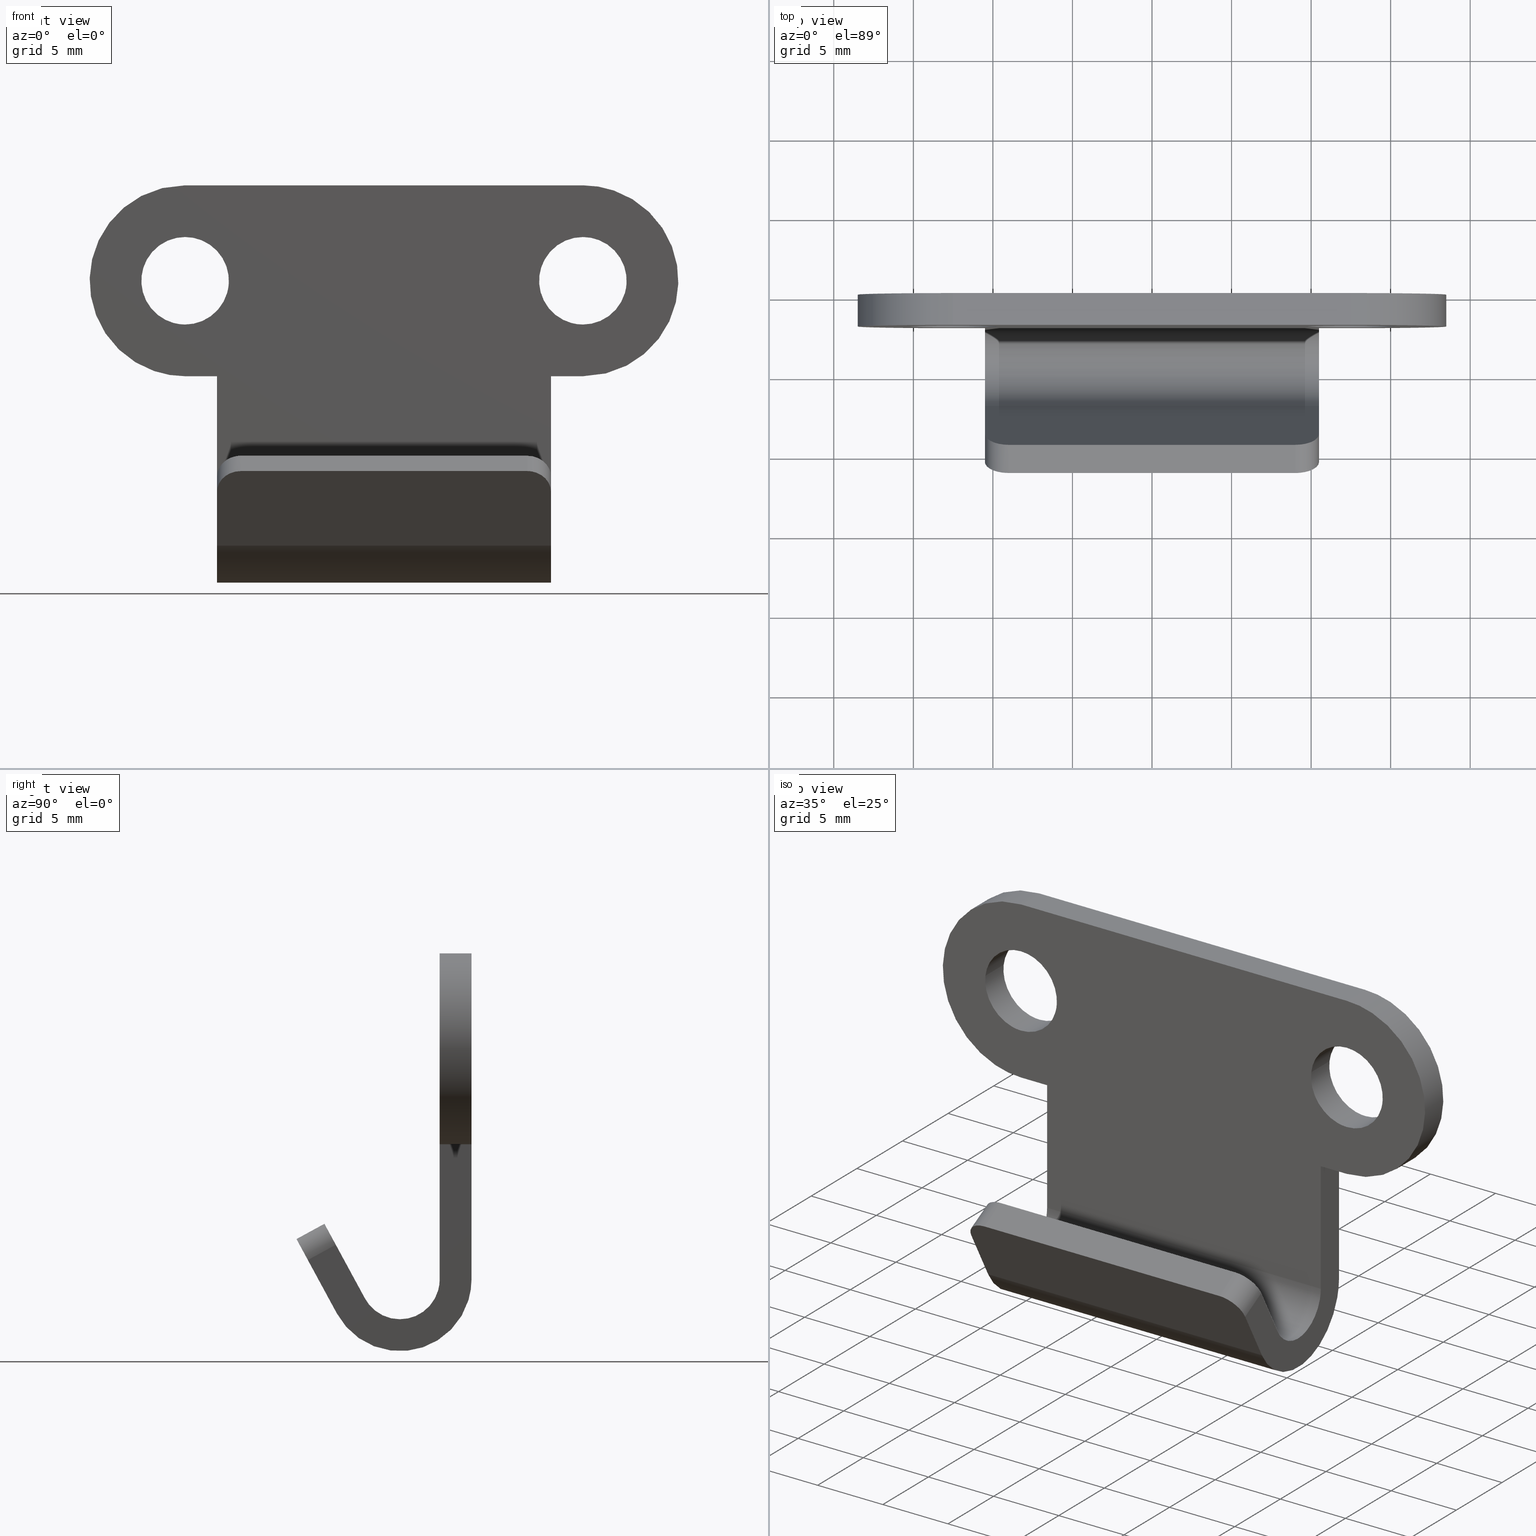
[diagram: canonical four-view strip — front | top / right | iso, engineering-drawing reading convention]
A machine part, canonical four-view strip (front | top / right | iso — engineering-drawing reading convention). The complete STEP part file that produces these views, byte-faithful:
ISO-10303-21;
HEADER;
/****************************************************************
 * Generated by software with PDE/Lib inside                    *
 * PDElib Version 4.4.1-0003, patched  Thursday August 19 11:58 *
 * International Technegroup Inc. (www.iti-oh.com)              *
 ****************************************************************/
FILE_DESCRIPTION((''),'2;1');
FILE_NAME('','2005-07-15T14:40:46',(''),(''),'','CADfix','');
FILE_SCHEMA(('AUTOMOTIVE_DESIGN'));
ENDSEC;
DATA;
#5=APPLICATION_CONTEXT('automotive design');
#6=APPLICATION_PROTOCOL_DEFINITION('Draft International Standard','automotive_design',1998,#5);
#7=PRODUCT_CONTEXT('None',#5,'mechanical');
#8=PRODUCT('keeper','','None',(#7));
#9=PRODUCT_RELATED_PRODUCT_CATEGORY('part','description',(#8));
#10=PRODUCT_DEFINITION_FORMATION('None','None',#8);
#11=PRODUCT_DEFINITION_CONTEXT('part definition',#5,'design');
#12=PRODUCT_DEFINITION('None','None',#10,#11);
#18=(NAMED_UNIT(*)PLANE_ANGLE_UNIT()SI_UNIT($,.RADIAN.));
#19=DIMENSIONAL_EXPONENTS(0.0,0.0,0.0,0.0,0.0,0.0,0.0);
#20=PLANE_ANGLE_MEASURE_WITH_UNIT(PLANE_ANGLE_MEASURE(0.017453292500000),#18);
#24=(CONVERSION_BASED_UNIT('DEGREE',#20)NAMED_UNIT(#19)PLANE_ANGLE_UNIT());
#28=(NAMED_UNIT(*)SI_UNIT($,.STERADIAN.)SOLID_ANGLE_UNIT());
#32=(LENGTH_UNIT()NAMED_UNIT(*)SI_UNIT(.MILLI.,.METRE.));
#34=UNCERTAINTY_MEASURE_WITH_UNIT(LENGTH_MEASURE(0.001000000000000),#32,'DISTANCE_ACCURACY_VALUE','');
#36=(GEOMETRIC_REPRESENTATION_CONTEXT(3)GLOBAL_UNCERTAINTY_ASSIGNED_CONTEXT((#34))GLOBAL_UNIT_ASSIGNED_CONTEXT((#24,#28,#32))REPRESENTATION_CONTEXT('None','None'));
#37=AXIS2_PLACEMENT_3D('',#38,#39,#40);
#38=CARTESIAN_POINT('',(0.0,0.0,0.0));
#39=DIRECTION('',(0.0,0.0,1.0));
#40=DIRECTION('',(1.0,0.0,0.0));
#41=ADVANCED_BREP_SHAPE_REPRESENTATION('',(#37,#1061),#36);
#42=PRODUCT_DEFINITION_SHAPE('','',#12);
#43=SHAPE_DEFINITION_REPRESENTATION(#42,#41);
#44=CARTESIAN_POINT('',(-15.230776197500090,0.050000000000000,-5.675405854693914));
#45=CARTESIAN_POINT('',(-15.240065942483664,0.050000000000000,-5.753559496245561));
#46=CARTESIAN_POINT('',(-15.244870695660129,0.050000000000000,-5.832116516279143));
#47=CARTESIAN_POINT('',(-15.412754179380990,0.050000000000000,-8.576987211939276));
#48=CARTESIAN_POINT('',(-12.667883483720860,0.050000000000000,-8.744870695660133));
#49=CARTESIAN_POINT('',(-9.923012788060724,0.050000000000000,-8.912754179380990));
#50=CARTESIAN_POINT('',(-9.755129304339867,0.050000000000000,-6.167883483720857));
#51=CARTESIAN_POINT('',(-15.230776197500090,-2.051250000000001,-5.675405854693914));
#52=CARTESIAN_POINT('',(-15.240065942483664,-2.051250000000000,-5.753559496245561));
#53=CARTESIAN_POINT('',(-15.244870695660129,-2.051250000000000,-5.832116516279143));
#54=CARTESIAN_POINT('',(-15.412754179380990,-2.051250000000001,-8.576987211939276));
#55=CARTESIAN_POINT('',(-12.667883483720860,-2.051250000000000,-8.744870695660133));
#56=CARTESIAN_POINT('',(-9.923012788060724,-2.051250000000001,-8.912754179380990));
#57=CARTESIAN_POINT('',(-9.755129304339867,-2.051250000000000,-6.167883483720857));
#65=(BOUNDED_SURFACE()B_SPLINE_SURFACE(2,1,((#44,#51),(#45,#52),(#46,#53),(#47,#54),(#48,#55),(#49,#56),(#50,#57)),.UNSPECIFIED.,.F.,.F.,.U.)B_SPLINE_SURFACE_WITH_KNOTS((3,2,2,3),(2,2),(0.0,0.182253967444162,4.738603153548206,9.294952339652248),(0.0,2.101250000000000),.UNSPECIFIED.)GEOMETRIC_REPRESENTATION_ITEM()RATIONAL_B_SPLINE_SURFACE(((0.977505800795127,0.977505800795127),(0.988284271247462,0.988284271247462),(1.0,1.0),(0.707106781186548,0.707106781186548),(1.0,1.0),(0.707106781186548,0.707106781186548),(1.0,1.0)))REPRESENTATION_ITEM('')SURFACE());
#66=CARTESIAN_POINT('',(-15.230776197496031,7.098571E-017,-5.675405854659825));
#67=VERTEX_POINT('',#66);
#68=CARTESIAN_POINT('',(-12.500000000000000,0.0,-8.750000000000000));
#69=VERTEX_POINT('',#68);
#70=CARTESIAN_POINT('',(-15.230776197496034,7.098571E-017,-5.675405854659824));
#71=CARTESIAN_POINT('',(-15.250000000000002,0.0,-5.837133670922799));
#72=CARTESIAN_POINT('',(-15.250000000000000,0.0,-6.0));
#73=CARTESIAN_POINT('',(-15.249999999999998,0.0,-8.750000000000000));
#74=CARTESIAN_POINT('',(-12.500000000000000,0.0,-8.750000000000000));
#82=(BOUNDED_CURVE()B_SPLINE_CURVE(2,(#70,#71,#72,#73,#74),.UNSPECIFIED.,.F.,.U.)B_SPLINE_CURVE_WITH_KNOTS((3,2,3),(0.229562473511425,0.250000000000000,0.500000000000000),.UNSPECIFIED.)CURVE()GEOMETRIC_REPRESENTATION_ITEM()RATIONAL_B_SPLINE_CURVE((0.956026754179616,0.976055948328704,1.0,0.707106781186548,1.0))REPRESENTATION_ITEM(''));
#83=EDGE_CURVE('',#67,#69,#82,.T.);
#84=ORIENTED_EDGE('',*,*,#83,.F.);
#85=CARTESIAN_POINT('',(-15.230776197496031,-2.0,-5.675405854659825));
#86=VERTEX_POINT('',#85);
#87=CARTESIAN_POINT('',(-15.230776197496031,7.098571E-017,-5.675405854659825));
#88=CARTESIAN_POINT('',(-15.230776197496031,-2.0,-5.675405854659825));
#89=QUASI_UNIFORM_CURVE('',1,(#87,#88),.UNSPECIFIED.,.F.,.U.);
#90=EDGE_CURVE('',#67,#86,#89,.T.);
#91=ORIENTED_EDGE('',*,*,#90,.T.);
#92=CARTESIAN_POINT('',(-12.500000000000000,-2.0,-8.750000000000000));
#93=VERTEX_POINT('',#92);
#94=CARTESIAN_POINT('',(-15.230776197496034,-2.000000000000000,-5.675405854659824));
#95=CARTESIAN_POINT('',(-15.250000000000002,-2.000000000000000,-5.837133670922799));
#96=CARTESIAN_POINT('',(-15.250000000000000,-2.0,-6.0));
#97=CARTESIAN_POINT('',(-15.249999999999998,-2.000000000000000,-8.750000000000000));
#98=CARTESIAN_POINT('',(-12.500000000000000,-2.0,-8.750000000000000));
#106=(BOUNDED_CURVE()B_SPLINE_CURVE(2,(#94,#95,#96,#97,#98),.UNSPECIFIED.,.F.,.U.)B_SPLINE_CURVE_WITH_KNOTS((3,2,3),(0.229562473511425,0.250000000000000,0.500000000000000),.UNSPECIFIED.)CURVE()GEOMETRIC_REPRESENTATION_ITEM()RATIONAL_B_SPLINE_CURVE((0.956026754179616,0.976055948328704,1.0,0.707106781186548,1.0))REPRESENTATION_ITEM(''));
#107=EDGE_CURVE('',#86,#93,#106,.T.);
#108=ORIENTED_EDGE('',*,*,#107,.T.);
#109=CARTESIAN_POINT('',(-9.755129304343132,-2.0,-6.167883483774260));
#110=VERTEX_POINT('',#109);
#111=CARTESIAN_POINT('',(-12.500000000000000,-2.0,-8.750000000000000));
#112=CARTESIAN_POINT('',(-9.913058316110183,-1.999999999999999,-8.750000000000000));
#113=CARTESIAN_POINT('',(-9.755129304343132,-2.000000000000000,-6.167883483774260));
#121=(BOUNDED_CURVE()B_SPLINE_CURVE(2,(#111,#112,#113),.UNSPECIFIED.,.F.,.U.)B_SPLINE_CURVE_WITH_KNOTS((3,3),(0.500000000000000,0.739332962235255),.UNSPECIFIED.)CURVE()GEOMETRIC_REPRESENTATION_ITEM()RATIONAL_B_SPLINE_CURVE((1.0,0.719603993291031,0.976072041658813))REPRESENTATION_ITEM(''));
#122=EDGE_CURVE('',#93,#110,#121,.T.);
#123=ORIENTED_EDGE('',*,*,#122,.T.);
#124=CARTESIAN_POINT('',(-9.755129304343134,6.938894E-017,-6.167883483774261));
#125=VERTEX_POINT('',#124);
#126=CARTESIAN_POINT('',(-9.755129304343134,6.938894E-017,-6.167883483774261));
#127=CARTESIAN_POINT('',(-9.755129304343132,-2.0,-6.167883483774260));
#128=QUASI_UNIFORM_CURVE('',1,(#126,#127),.UNSPECIFIED.,.F.,.U.);
#129=EDGE_CURVE('',#125,#110,#128,.T.);
#130=ORIENTED_EDGE('',*,*,#129,.F.);
#131=CARTESIAN_POINT('',(-12.500000000000000,0.0,-8.750000000000000));
#132=CARTESIAN_POINT('',(-9.913058316110183,0.0,-8.750000000000000));
#133=CARTESIAN_POINT('',(-9.755129304343134,6.938894E-017,-6.167883483774262));
#141=(BOUNDED_CURVE()B_SPLINE_CURVE(2,(#131,#132,#133),.UNSPECIFIED.,.F.,.U.)B_SPLINE_CURVE_WITH_KNOTS((3,3),(0.500000000000000,0.739332962235255),.UNSPECIFIED.)CURVE()GEOMETRIC_REPRESENTATION_ITEM()RATIONAL_B_SPLINE_CURVE((1.0,0.719603993291031,0.976072041658813))REPRESENTATION_ITEM(''));
#142=EDGE_CURVE('',#69,#125,#141,.T.);
#143=ORIENTED_EDGE('',*,*,#142,.F.);
#144=EDGE_LOOP('',(#84,#91,#108,#123,#130,#143));
#145=FACE_OUTER_BOUND('',#144,.T.);
#146=ADVANCED_FACE('',(#145),#65,.F.);
#147=CARTESIAN_POINT('',(-9.755129304339867,0.050000000000000,-6.167883483720857));
#148=CARTESIAN_POINT('',(-9.587245820619010,0.050000000000000,-3.423012788060723));
#149=CARTESIAN_POINT('',(-12.332116516279140,0.050000000000000,-3.255129304339866));
#150=CARTESIAN_POINT('',(-14.924244599808622,0.050000000000000,-3.096587958985549));
#151=CARTESIAN_POINT('',(-15.230776197500090,0.050000000000000,-5.675405854693914));
#152=CARTESIAN_POINT('',(-9.755129304339867,-2.051250000000000,-6.167883483720857));
#153=CARTESIAN_POINT('',(-9.587245820619010,-2.051250000000001,-3.423012788060723));
#154=CARTESIAN_POINT('',(-12.332116516279140,-2.051250000000000,-3.255129304339866));
#155=CARTESIAN_POINT('',(-14.924244599808622,-2.051250000000001,-3.096587958985549));
#156=CARTESIAN_POINT('',(-15.230776197500090,-2.051250000000001,-5.675405854693914));
#164=(BOUNDED_SURFACE()B_SPLINE_SURFACE(2,1,((#147,#152),(#148,#153),(#149,#154),(#150,#155),(#151,#156)),.UNSPECIFIED.,.F.,.F.,.U.)B_SPLINE_SURFACE_WITH_KNOTS((3,2,3),(2,2),(0.0,4.556349186104045,8.930444404763927),(0.0,2.101250000000000),.UNSPECIFIED.)GEOMETRIC_REPRESENTATION_ITEM()RATIONAL_B_SPLINE_SURFACE(((1.0,1.0),(0.707106781186548,0.707106781186548),(1.0,1.0),(0.718822509939086,0.718822509939086),(0.977505800795127,0.977505800795127)))REPRESENTATION_ITEM('')SURFACE());
#165=CARTESIAN_POINT('',(-12.500000000000000,0.0,-3.250000000000000));
#166=VERTEX_POINT('',#165);
#167=CARTESIAN_POINT('',(-12.500000000000000,0.0,-3.250000000000000));
#168=CARTESIAN_POINT('',(-14.942479946304845,0.0,-3.250000000000001));
#169=CARTESIAN_POINT('',(-15.230776197496033,7.098571E-017,-5.675405854659825));
#177=(BOUNDED_CURVE()B_SPLINE_CURVE(2,(#167,#168,#169),.UNSPECIFIED.,.F.,.U.)B_SPLINE_CURVE_WITH_KNOTS((3,3),(0.0,0.229562473511425),.UNSPECIFIED.)CURVE()GEOMETRIC_REPRESENTATION_ITEM()RATIONAL_B_SPLINE_CURVE((1.0,0.731050832857843,0.956026754179616))REPRESENTATION_ITEM(''));
#178=EDGE_CURVE('',#166,#67,#177,.T.);
#179=ORIENTED_EDGE('',*,*,#178,.F.);
#180=CARTESIAN_POINT('',(-9.755129304343134,6.938894E-017,-6.167883483774261));
#181=CARTESIAN_POINT('',(-9.750000000000004,0.0,-6.084020099124674));
#182=CARTESIAN_POINT('',(-9.750000000000002,0.0,-6.0));
#183=CARTESIAN_POINT('',(-9.750000000000002,0.0,-3.250000000000000));
#184=CARTESIAN_POINT('',(-12.500000000000000,0.0,-3.250000000000000));
#192=(BOUNDED_CURVE()B_SPLINE_CURVE(2,(#180,#181,#182,#183,#184),.UNSPECIFIED.,.F.,.U.)B_SPLINE_CURVE_WITH_KNOTS((3,2,3),(0.739332962235254,0.750000000000000,1.0),.UNSPECIFIED.)CURVE()GEOMETRIC_REPRESENTATION_ITEM()RATIONAL_B_SPLINE_CURVE((0.976072041658812,0.987502787895516,1.0,0.707106781186548,1.0))REPRESENTATION_ITEM(''));
#193=EDGE_CURVE('',#125,#166,#192,.T.);
#194=ORIENTED_EDGE('',*,*,#193,.F.);
#195=ORIENTED_EDGE('',*,*,#129,.T.);
#196=CARTESIAN_POINT('',(-12.500000000000000,-2.0,-3.250000000000000));
#197=VERTEX_POINT('',#196);
#198=CARTESIAN_POINT('',(-9.755129304343132,-2.000000000000000,-6.167883483774260));
#199=CARTESIAN_POINT('',(-9.750000000000002,-2.000000000000000,-6.084020099124673));
#200=CARTESIAN_POINT('',(-9.750000000000002,-2.0,-6.0));
#201=CARTESIAN_POINT('',(-9.750000000000002,-2.000000000000000,-3.250000000000000));
#202=CARTESIAN_POINT('',(-12.500000000000000,-2.0,-3.250000000000000));
#210=(BOUNDED_CURVE()B_SPLINE_CURVE(2,(#198,#199,#200,#201,#202),.UNSPECIFIED.,.F.,.U.)B_SPLINE_CURVE_WITH_KNOTS((3,2,3),(0.739332962235254,0.750000000000000,1.0),.UNSPECIFIED.)CURVE()GEOMETRIC_REPRESENTATION_ITEM()RATIONAL_B_SPLINE_CURVE((0.976072041658812,0.987502787895516,1.0,0.707106781186548,1.0))REPRESENTATION_ITEM(''));
#211=EDGE_CURVE('',#110,#197,#210,.T.);
#212=ORIENTED_EDGE('',*,*,#211,.T.);
#213=CARTESIAN_POINT('',(-12.500000000000000,-2.0,-3.250000000000000));
#214=CARTESIAN_POINT('',(-14.942479946304845,-2.0,-3.250000000000001));
#215=CARTESIAN_POINT('',(-15.230776197496033,-2.000000000000000,-5.675405854659825));
#223=(BOUNDED_CURVE()B_SPLINE_CURVE(2,(#213,#214,#215),.UNSPECIFIED.,.F.,.U.)B_SPLINE_CURVE_WITH_KNOTS((3,3),(0.0,0.229562473511425),.UNSPECIFIED.)CURVE()GEOMETRIC_REPRESENTATION_ITEM()RATIONAL_B_SPLINE_CURVE((1.0,0.731050832857843,0.956026754179616))REPRESENTATION_ITEM(''));
#224=EDGE_CURVE('',#197,#86,#223,.T.);
#225=ORIENTED_EDGE('',*,*,#224,.T.);
#226=ORIENTED_EDGE('',*,*,#90,.F.);
#227=EDGE_LOOP('',(#179,#194,#195,#212,#225,#226));
#228=FACE_OUTER_BOUND('',#227,.T.);
#229=ADVANCED_FACE('',(#228),#164,.F.);
#230=CARTESIAN_POINT('',(9.769223802499919,0.050000000000000,-5.675405854693914));
#231=CARTESIAN_POINT('',(9.759934057516336,0.050000000000000,-5.753559496245561));
#232=CARTESIAN_POINT('',(9.755129304339867,0.050000000000000,-5.832116516279143));
#233=CARTESIAN_POINT('',(9.587245820619010,0.050000000000000,-8.576987211939276));
#234=CARTESIAN_POINT('',(12.332116516279140,0.050000000000000,-8.744870695660133));
#235=CARTESIAN_POINT('',(15.076987211939274,0.050000000000000,-8.912754179380990));
#236=CARTESIAN_POINT('',(15.244870695660129,0.050000000000000,-6.167883483720857));
#237=CARTESIAN_POINT('',(9.769223802499919,-2.051250000000001,-5.675405854693914));
#238=CARTESIAN_POINT('',(9.759934057516336,-2.051250000000000,-5.753559496245561));
#239=CARTESIAN_POINT('',(9.755129304339867,-2.051250000000000,-5.832116516279143));
#240=CARTESIAN_POINT('',(9.587245820619010,-2.051250000000001,-8.576987211939276));
#241=CARTESIAN_POINT('',(12.332116516279140,-2.051250000000000,-8.744870695660133));
#242=CARTESIAN_POINT('',(15.076987211939274,-2.051250000000001,-8.912754179380990));
#243=CARTESIAN_POINT('',(15.244870695660129,-2.051250000000000,-6.167883483720857));
#251=(BOUNDED_SURFACE()B_SPLINE_SURFACE(2,1,((#230,#237),(#231,#238),(#232,#239),(#233,#240),(#234,#241),(#235,#242),(#236,#243)),.UNSPECIFIED.,.F.,.F.,.U.)B_SPLINE_SURFACE_WITH_KNOTS((3,2,2,3),(2,2),(0.0,0.182253967444162,4.738603153548206,9.294952339652248),(0.0,2.101250000000000),.UNSPECIFIED.)GEOMETRIC_REPRESENTATION_ITEM()RATIONAL_B_SPLINE_SURFACE(((0.977505800795127,0.977505800795127),(0.988284271247462,0.988284271247462),(1.0,1.0),(0.707106781186548,0.707106781186548),(1.0,1.0),(0.707106781186548,0.707106781186548),(1.0,1.0)))REPRESENTATION_ITEM('')SURFACE());
#252=CARTESIAN_POINT('',(9.769223802503969,7.098571E-017,-5.675405854659825));
#253=VERTEX_POINT('',#252);
#254=CARTESIAN_POINT('',(12.500000000000000,0.0,-8.750000000000000));
#255=VERTEX_POINT('',#254);
#256=CARTESIAN_POINT('',(9.769223802503969,7.098571E-017,-5.675405854659825));
#257=CARTESIAN_POINT('',(9.750000000000002,0.0,-5.837133670922799));
#258=CARTESIAN_POINT('',(9.750000000000002,0.0,-6.0));
#259=CARTESIAN_POINT('',(9.750000000000002,0.0,-8.750000000000000));
#260=CARTESIAN_POINT('',(12.500000000000000,0.0,-8.750000000000000));
#268=(BOUNDED_CURVE()B_SPLINE_CURVE(2,(#256,#257,#258,#259,#260),.UNSPECIFIED.,.F.,.U.)B_SPLINE_CURVE_WITH_KNOTS((3,2,3),(0.229562473511425,0.250000000000000,0.500000000000000),.UNSPECIFIED.)CURVE()GEOMETRIC_REPRESENTATION_ITEM()RATIONAL_B_SPLINE_CURVE((0.956026754179616,0.976055948328704,1.0,0.707106781186548,1.0))REPRESENTATION_ITEM(''));
#269=EDGE_CURVE('',#253,#255,#268,.T.);
#270=ORIENTED_EDGE('',*,*,#269,.F.);
#271=CARTESIAN_POINT('',(9.769223802503971,-2.0,-5.675405854659825));
#272=VERTEX_POINT('',#271);
#273=CARTESIAN_POINT('',(9.769223802503969,7.098571E-017,-5.675405854659825));
#274=CARTESIAN_POINT('',(9.769223802503971,-2.0,-5.675405854659825));
#275=QUASI_UNIFORM_CURVE('',1,(#273,#274),.UNSPECIFIED.,.F.,.U.);
#276=EDGE_CURVE('',#253,#272,#275,.T.);
#277=ORIENTED_EDGE('',*,*,#276,.T.);
#278=CARTESIAN_POINT('',(12.500000000000000,-2.0,-8.750000000000000));
#279=VERTEX_POINT('',#278);
#280=CARTESIAN_POINT('',(9.769223802503971,-2.000000000000000,-5.675405854659824));
#281=CARTESIAN_POINT('',(9.750000000000002,-2.000000000000000,-5.837133670922799));
#282=CARTESIAN_POINT('',(9.750000000000002,-2.0,-6.0));
#283=CARTESIAN_POINT('',(9.750000000000002,-2.000000000000000,-8.750000000000000));
#284=CARTESIAN_POINT('',(12.500000000000000,-2.0,-8.750000000000000));
#292=(BOUNDED_CURVE()B_SPLINE_CURVE(2,(#280,#281,#282,#283,#284),.UNSPECIFIED.,.F.,.U.)B_SPLINE_CURVE_WITH_KNOTS((3,2,3),(0.229562473511425,0.250000000000000,0.500000000000000),.UNSPECIFIED.)CURVE()GEOMETRIC_REPRESENTATION_ITEM()RATIONAL_B_SPLINE_CURVE((0.956026754179616,0.976055948328704,1.0,0.707106781186548,1.0))REPRESENTATION_ITEM(''));
#293=EDGE_CURVE('',#272,#279,#292,.T.);
#294=ORIENTED_EDGE('',*,*,#293,.T.);
#295=CARTESIAN_POINT('',(15.244870695656870,-2.0,-6.167883483774260));
#296=VERTEX_POINT('',#295);
#297=CARTESIAN_POINT('',(12.500000000000000,-2.0,-8.750000000000000));
#298=CARTESIAN_POINT('',(15.086941683889821,-1.999999999999999,-8.750000000000000));
#299=CARTESIAN_POINT('',(15.244870695656868,-2.000000000000000,-6.167883483774260));
#307=(BOUNDED_CURVE()B_SPLINE_CURVE(2,(#297,#298,#299),.UNSPECIFIED.,.F.,.U.)B_SPLINE_CURVE_WITH_KNOTS((3,3),(0.500000000000000,0.739332962235255),.UNSPECIFIED.)CURVE()GEOMETRIC_REPRESENTATION_ITEM()RATIONAL_B_SPLINE_CURVE((1.0,0.719603993291031,0.976072041658813))REPRESENTATION_ITEM(''));
#308=EDGE_CURVE('',#279,#296,#307,.T.);
#309=ORIENTED_EDGE('',*,*,#308,.T.);
#310=CARTESIAN_POINT('',(15.244870695656870,6.938894E-017,-6.167883483774260));
#311=VERTEX_POINT('',#310);
#312=CARTESIAN_POINT('',(15.244870695656870,6.938894E-017,-6.167883483774260));
#313=CARTESIAN_POINT('',(15.244870695656870,-2.0,-6.167883483774260));
#314=QUASI_UNIFORM_CURVE('',1,(#312,#313),.UNSPECIFIED.,.F.,.U.);
#315=EDGE_CURVE('',#311,#296,#314,.T.);
#316=ORIENTED_EDGE('',*,*,#315,.F.);
#317=CARTESIAN_POINT('',(12.500000000000000,0.0,-8.750000000000000));
#318=CARTESIAN_POINT('',(15.086941683889821,0.0,-8.750000000000000));
#319=CARTESIAN_POINT('',(15.244870695656868,6.938894E-017,-6.167883483774260));
#327=(BOUNDED_CURVE()B_SPLINE_CURVE(2,(#317,#318,#319),.UNSPECIFIED.,.F.,.U.)B_SPLINE_CURVE_WITH_KNOTS((3,3),(0.500000000000000,0.739332962235255),.UNSPECIFIED.)CURVE()GEOMETRIC_REPRESENTATION_ITEM()RATIONAL_B_SPLINE_CURVE((1.0,0.719603993291031,0.976072041658813))REPRESENTATION_ITEM(''));
#328=EDGE_CURVE('',#255,#311,#327,.T.);
#329=ORIENTED_EDGE('',*,*,#328,.F.);
#330=EDGE_LOOP('',(#270,#277,#294,#309,#316,#329));
#331=FACE_OUTER_BOUND('',#330,.T.);
#332=ADVANCED_FACE('',(#331),#251,.F.);
#333=CARTESIAN_POINT('',(15.244870695660129,0.050000000000000,-6.167883483720857));
#334=CARTESIAN_POINT('',(15.412754179380990,0.050000000000000,-3.423012788060723));
#335=CARTESIAN_POINT('',(12.667883483720860,0.050000000000000,-3.255129304339866));
#336=CARTESIAN_POINT('',(10.075755400191376,0.050000000000000,-3.096587958985549));
#337=CARTESIAN_POINT('',(9.769223802499919,0.050000000000000,-5.675405854693914));
#338=CARTESIAN_POINT('',(15.244870695660129,-2.051250000000000,-6.167883483720857));
#339=CARTESIAN_POINT('',(15.412754179380990,-2.051250000000001,-3.423012788060723));
#340=CARTESIAN_POINT('',(12.667883483720860,-2.051250000000000,-3.255129304339866));
#341=CARTESIAN_POINT('',(10.075755400191376,-2.051250000000001,-3.096587958985549));
#342=CARTESIAN_POINT('',(9.769223802499919,-2.051250000000001,-5.675405854693914));
#350=(BOUNDED_SURFACE()B_SPLINE_SURFACE(2,1,((#333,#338),(#334,#339),(#335,#340),(#336,#341),(#337,#342)),.UNSPECIFIED.,.F.,.F.,.U.)B_SPLINE_SURFACE_WITH_KNOTS((3,2,3),(2,2),(0.0,4.556349186104045,8.930444404763927),(0.0,2.101250000000000),.UNSPECIFIED.)GEOMETRIC_REPRESENTATION_ITEM()RATIONAL_B_SPLINE_SURFACE(((1.0,1.0),(0.707106781186548,0.707106781186548),(1.0,1.0),(0.718822509939086,0.718822509939086),(0.977505800795127,0.977505800795127)))REPRESENTATION_ITEM('')SURFACE());
#351=CARTESIAN_POINT('',(12.500000000000000,0.0,-3.250000000000000));
#352=VERTEX_POINT('',#351);
#353=CARTESIAN_POINT('',(12.500000000000000,0.0,-3.250000000000000));
#354=CARTESIAN_POINT('',(10.057520053695150,0.0,-3.250000000000001));
#355=CARTESIAN_POINT('',(9.769223802503969,7.098571E-017,-5.675405854659825));
#363=(BOUNDED_CURVE()B_SPLINE_CURVE(2,(#353,#354,#355),.UNSPECIFIED.,.F.,.U.)B_SPLINE_CURVE_WITH_KNOTS((3,3),(0.0,0.229562473511425),.UNSPECIFIED.)CURVE()GEOMETRIC_REPRESENTATION_ITEM()RATIONAL_B_SPLINE_CURVE((1.0,0.731050832857843,0.956026754179616))REPRESENTATION_ITEM(''));
#364=EDGE_CURVE('',#352,#253,#363,.T.);
#365=ORIENTED_EDGE('',*,*,#364,.F.);
#366=CARTESIAN_POINT('',(15.244870695656873,6.938894E-017,-6.167883483774260));
#367=CARTESIAN_POINT('',(15.250000000000004,0.0,-6.084020099124673));
#368=CARTESIAN_POINT('',(15.250000000000000,0.0,-6.0));
#369=CARTESIAN_POINT('',(15.249999999999998,0.0,-3.250000000000000));
#370=CARTESIAN_POINT('',(12.500000000000000,0.0,-3.250000000000000));
#378=(BOUNDED_CURVE()B_SPLINE_CURVE(2,(#366,#367,#368,#369,#370),.UNSPECIFIED.,.F.,.U.)B_SPLINE_CURVE_WITH_KNOTS((3,2,3),(0.739332962235254,0.750000000000000,1.0),.UNSPECIFIED.)CURVE()GEOMETRIC_REPRESENTATION_ITEM()RATIONAL_B_SPLINE_CURVE((0.976072041658812,0.987502787895516,1.0,0.707106781186548,1.0))REPRESENTATION_ITEM(''));
#379=EDGE_CURVE('',#311,#352,#378,.T.);
#380=ORIENTED_EDGE('',*,*,#379,.F.);
#381=ORIENTED_EDGE('',*,*,#315,.T.);
#382=CARTESIAN_POINT('',(12.500000000000000,-2.0,-3.250000000000000));
#383=VERTEX_POINT('',#382);
#384=CARTESIAN_POINT('',(15.244870695656873,-2.000000000000000,-6.167883483774260));
#385=CARTESIAN_POINT('',(15.250000000000004,-2.000000000000000,-6.084020099124673));
#386=CARTESIAN_POINT('',(15.250000000000000,-2.0,-6.0));
#387=CARTESIAN_POINT('',(15.249999999999998,-2.000000000000000,-3.250000000000000));
#388=CARTESIAN_POINT('',(12.500000000000000,-2.0,-3.250000000000000));
#396=(BOUNDED_CURVE()B_SPLINE_CURVE(2,(#384,#385,#386,#387,#388),.UNSPECIFIED.,.F.,.U.)B_SPLINE_CURVE_WITH_KNOTS((3,2,3),(0.739332962235254,0.750000000000000,1.0),.UNSPECIFIED.)CURVE()GEOMETRIC_REPRESENTATION_ITEM()RATIONAL_B_SPLINE_CURVE((0.976072041658812,0.987502787895516,1.0,0.707106781186548,1.0))REPRESENTATION_ITEM(''));
#397=EDGE_CURVE('',#296,#383,#396,.T.);
#398=ORIENTED_EDGE('',*,*,#397,.T.);
#399=CARTESIAN_POINT('',(12.500000000000000,-2.0,-3.250000000000000));
#400=CARTESIAN_POINT('',(10.057520053695150,-2.0,-3.250000000000001));
#401=CARTESIAN_POINT('',(9.769223802503971,-2.000000000000000,-5.675405854659825));
#409=(BOUNDED_CURVE()B_SPLINE_CURVE(2,(#399,#400,#401),.UNSPECIFIED.,.F.,.U.)B_SPLINE_CURVE_WITH_KNOTS((3,3),(0.0,0.229562473511425),.UNSPECIFIED.)CURVE()GEOMETRIC_REPRESENTATION_ITEM()RATIONAL_B_SPLINE_CURVE((1.0,0.731050832857843,0.956026754179616))REPRESENTATION_ITEM(''));
#410=EDGE_CURVE('',#383,#272,#409,.T.);
#411=ORIENTED_EDGE('',*,*,#410,.T.);
#412=ORIENTED_EDGE('',*,*,#276,.F.);
#413=EDGE_LOOP('',(#365,#380,#381,#398,#411,#412));
#414=FACE_OUTER_BOUND('',#413,.T.);
#415=ADVANCED_FACE('',(#414),#350,.F.);
#416=CARTESIAN_POINT('',(-8.934570918952005,-11.046898161794839,-17.986253884603990));
#417=CARTESIAN_POINT('',(-8.934570918952005,-9.199250839374052,-16.976627797879459));
#418=CARTESIAN_POINT('',(-10.614090555753496,-11.082060906612497,-17.921904961606089));
#419=CARTESIAN_POINT('',(-10.614090555753497,-9.234413584191710,-16.912278874881565));
#420=CARTESIAN_POINT('',(-10.496314359959523,-10.277915117560962,-19.393516911330227));
#421=CARTESIAN_POINT('',(-10.496314359959532,-8.430267795140168,-18.383890824605704));
#429=(BOUNDED_SURFACE()B_SPLINE_SURFACE(1,2,((#416,#418,#420),(#417,#419,#421)),.UNSPECIFIED.,.F.,.F.,.U.)B_SPLINE_SURFACE_WITH_KNOTS((2,2),(3,3),(0.0,2.105503612688279),(0.0,2.687613979291601),.UNSPECIFIED.)GEOMETRIC_REPRESENTATION_ITEM()RATIONAL_B_SPLINE_SURFACE(((1.0,0.664513877421244,0.996233603012735),(1.0,0.664513877421244,0.996233603012735)))REPRESENTATION_ITEM('')SURFACE());
#430=CARTESIAN_POINT('',(-9.0,-11.0,-17.959000000000000));
#431=VERTEX_POINT('',#430);
#432=CARTESIAN_POINT('',(-10.500000000000000,-10.284340886672441,-19.277275018970251));
#433=VERTEX_POINT('',#432);
#434=CARTESIAN_POINT('',(-9.0,-11.0,-17.959000000000000));
#435=CARTESIAN_POINT('',(-10.499999999999998,-10.999999999999991,-17.958999999999907));
#436=CARTESIAN_POINT('',(-10.500000000000000,-10.284340886672441,-19.277275018970251));
#444=(BOUNDED_CURVE()B_SPLINE_CURVE(2,(#434,#435,#436),.UNSPECIFIED.,.F.,.U.)CURVE()GEOMETRIC_REPRESENTATION_ITEM()QUASI_UNIFORM_CURVE()RATIONAL_B_SPLINE_CURVE((1.0,0.707106781186547,1.0))REPRESENTATION_ITEM(''));
#445=EDGE_CURVE('',#431,#433,#444,.T.);
#446=ORIENTED_EDGE('',*,*,#445,.F.);
#447=CARTESIAN_POINT('',(-9.0,-9.244999999999999,-17.0));
#448=VERTEX_POINT('',#447);
#449=CARTESIAN_POINT('',(-9.0,-9.244999999999999,-17.0));
#450=CARTESIAN_POINT('',(-9.0,-11.0,-17.959000000000000));
#451=QUASI_UNIFORM_CURVE('',1,(#449,#450),.UNSPECIFIED.,.F.,.U.);
#452=EDGE_CURVE('',#448,#431,#451,.T.);
#453=ORIENTED_EDGE('',*,*,#452,.F.);
#454=CARTESIAN_POINT('',(-10.500000000000000,-8.529161378109500,-18.318176928536150));
#455=VERTEX_POINT('',#454);
#456=CARTESIAN_POINT('',(-10.500000000000000,-8.529161378109500,-18.318176928536150));
#457=CARTESIAN_POINT('',(-10.499999999999998,-9.245000000000005,-16.999999999999925));
#458=CARTESIAN_POINT('',(-9.0,-9.244999999999999,-17.0));
#466=(BOUNDED_CURVE()B_SPLINE_CURVE(2,(#456,#457,#458),.UNSPECIFIED.,.F.,.U.)CURVE()GEOMETRIC_REPRESENTATION_ITEM()QUASI_UNIFORM_CURVE()RATIONAL_B_SPLINE_CURVE((1.0,0.707106781186547,1.0))REPRESENTATION_ITEM(''));
#467=EDGE_CURVE('',#455,#448,#466,.T.);
#468=ORIENTED_EDGE('',*,*,#467,.F.);
#469=CARTESIAN_POINT('',(-10.500000000000000,-10.284340886672441,-19.277275018970251));
#470=CARTESIAN_POINT('',(-10.500000000000000,-8.529161378109500,-18.318176928536150));
#471=QUASI_UNIFORM_CURVE('',1,(#469,#470),.UNSPECIFIED.,.F.,.U.);
#472=EDGE_CURVE('',#433,#455,#471,.T.);
#473=ORIENTED_EDGE('',*,*,#472,.F.);
#474=EDGE_LOOP('',(#446,#453,#468,#473));
#475=FACE_OUTER_BOUND('',#474,.T.);
#476=ADVANCED_FACE('',(#475),#429,.T.);
#477=CARTESIAN_POINT('',(8.934570918951998,-9.200349975199398,-16.977228408282048));
#478=CARTESIAN_POINT('',(8.934570918951998,-11.047997297620190,-17.986854495006579));
#479=CARTESIAN_POINT('',(10.614090714818433,-9.235512723347274,-16.912879479189741));
#480=CARTESIAN_POINT('',(10.614090714818438,-11.083160045768063,-17.922505565914264));
#481=CARTESIAN_POINT('',(10.496314350071174,-8.431366863450389,-18.384491558563070));
#482=CARTESIAN_POINT('',(10.496314350071174,-10.279014185871180,-19.394117645287601));
#490=(BOUNDED_SURFACE()B_SPLINE_SURFACE(1,2,((#477,#479,#481),(#478,#480,#482)),.UNSPECIFIED.,.F.,.F.,.U.)B_SPLINE_SURFACE_WITH_KNOTS((2,2),(3,3),(0.0,2.105503612688281),(0.0,2.687614148820226),.UNSPECIFIED.)GEOMETRIC_REPRESENTATION_ITEM()RATIONAL_B_SPLINE_SURFACE(((1.0,0.664513856307367,0.996233644766415),(1.0,0.664513856307367,0.996233644766415)))REPRESENTATION_ITEM('')SURFACE());
#491=CARTESIAN_POINT('',(10.500000000000000,-10.284340886672441,-19.277275018970251));
#492=VERTEX_POINT('',#491);
#493=CARTESIAN_POINT('',(9.0,-11.0,-17.959000000000000));
#494=VERTEX_POINT('',#493);
#495=CARTESIAN_POINT('',(10.500000000000000,-10.284340886672441,-19.277275018970251));
#496=CARTESIAN_POINT('',(10.499999999999998,-10.999999768070049,-17.959000427224886));
#497=CARTESIAN_POINT('',(9.0,-11.0,-17.959000000000000));
#505=(BOUNDED_CURVE()B_SPLINE_CURVE(2,(#495,#496,#497),.UNSPECIFIED.,.F.,.U.)CURVE()GEOMETRIC_REPRESENTATION_ITEM()QUASI_UNIFORM_CURVE()RATIONAL_B_SPLINE_CURVE((1.0,0.707106895765713,1.0))REPRESENTATION_ITEM(''));
#506=EDGE_CURVE('',#492,#494,#505,.T.);
#507=ORIENTED_EDGE('',*,*,#506,.F.);
#508=CARTESIAN_POINT('',(10.500000000000000,-8.529161378109500,-18.318176928536150));
#509=VERTEX_POINT('',#508);
#510=CARTESIAN_POINT('',(10.500000000000000,-8.529161378109500,-18.318176928536150));
#511=CARTESIAN_POINT('',(10.500000000000000,-10.284340886672441,-19.277275018970251));
#512=QUASI_UNIFORM_CURVE('',1,(#510,#511),.UNSPECIFIED.,.F.,.U.);
#513=EDGE_CURVE('',#509,#492,#512,.T.);
#514=ORIENTED_EDGE('',*,*,#513,.F.);
#515=CARTESIAN_POINT('',(9.0,-9.244999999999999,-17.0));
#516=VERTEX_POINT('',#515);
#517=CARTESIAN_POINT('',(9.0,-9.244999999999999,-17.0));
#518=CARTESIAN_POINT('',(9.621320003108027,-9.245000095174039,-16.999999824742236));
#519=CARTESIAN_POINT('',(10.060660001554011,-9.035335803119635,-17.386084933972729));
#520=CARTESIAN_POINT('',(10.499999999999998,-8.825671511065231,-17.772170043203218));
#521=CARTESIAN_POINT('',(10.500000000000000,-8.529161378109500,-18.318176928536150));
#529=(BOUNDED_CURVE()B_SPLINE_CURVE(2,(#517,#518,#519,#520,#521),.UNSPECIFIED.,.F.,.U.)B_SPLINE_CURVE_WITH_KNOTS((3,2,3),(0.0,0.500000000000000,1.0),.UNSPECIFIED.)CURVE()GEOMETRIC_REPRESENTATION_ITEM()RATIONAL_B_SPLINE_CURVE((1.0,0.923879501802773,1.0,0.923879501802773,1.0))REPRESENTATION_ITEM(''));
#530=EDGE_CURVE('',#516,#509,#529,.T.);
#531=ORIENTED_EDGE('',*,*,#530,.F.);
#532=CARTESIAN_POINT('',(9.0,-11.0,-17.959000000000000));
#533=CARTESIAN_POINT('',(9.0,-9.244999999999999,-17.0));
#534=QUASI_UNIFORM_CURVE('',1,(#532,#533),.UNSPECIFIED.,.F.,.U.);
#535=EDGE_CURVE('',#494,#516,#534,.T.);
#536=ORIENTED_EDGE('',*,*,#535,.F.);
#537=EDGE_LOOP('',(#507,#514,#531,#536));
#538=FACE_OUTER_BOUND('',#537,.T.);
#539=ADVANCED_FACE('',(#538),#490,.T.);
#540=CARTESIAN_POINT('',(-10.400100003876391,-2.099899996123612,-12.0));
#541=CARTESIAN_POINT('',(-12.599900049767790,-2.099899996123612,-12.0));
#542=CARTESIAN_POINT('',(-10.400100003876391,0.099900049767792,-12.0));
#543=CARTESIAN_POINT('',(-12.599900049767790,0.099900049767792,-12.0));
#544=B_SPLINE_SURFACE_WITH_KNOTS('',1,1,((#540,#542),(#541,#543)),.UNSPECIFIED.,.F.,.F.,.U.,(2,2),(2,2),(0.0,2.199800045891406),(0.0,2.199800045891404),.UNSPECIFIED.);
#545=CARTESIAN_POINT('',(-12.500000000000000,-2.0,-12.0));
#546=VERTEX_POINT('',#545);
#547=CARTESIAN_POINT('',(-10.500000000000000,-2.0,-12.0));
#548=VERTEX_POINT('',#547);
#549=CARTESIAN_POINT('',(-12.500000000000000,-2.0,-12.0));
#550=CARTESIAN_POINT('',(-10.500000000000000,-2.0,-12.0));
#551=QUASI_UNIFORM_CURVE('',1,(#549,#550),.UNSPECIFIED.,.F.,.U.);
#552=EDGE_CURVE('',#546,#548,#551,.T.);
#553=ORIENTED_EDGE('',*,*,#552,.F.);
#554=CARTESIAN_POINT('',(-12.500000000000000,0.0,-12.0));
#555=VERTEX_POINT('',#554);
#556=CARTESIAN_POINT('',(-12.500000000000000,0.0,-12.0));
#557=CARTESIAN_POINT('',(-12.500000000000000,-2.0,-12.0));
#558=QUASI_UNIFORM_CURVE('',1,(#556,#557),.UNSPECIFIED.,.F.,.U.);
#559=EDGE_CURVE('',#555,#546,#558,.T.);
#560=ORIENTED_EDGE('',*,*,#559,.F.);
#561=CARTESIAN_POINT('',(-10.500000000000000,0.0,-12.0));
#562=VERTEX_POINT('',#561);
#563=CARTESIAN_POINT('',(-12.500000000000000,0.0,-12.0));
#564=CARTESIAN_POINT('',(-10.500000000000000,0.0,-12.0));
#565=QUASI_UNIFORM_CURVE('',1,(#563,#564),.UNSPECIFIED.,.F.,.U.);
#566=EDGE_CURVE('',#555,#562,#565,.T.);
#567=ORIENTED_EDGE('',*,*,#566,.T.);
#568=CARTESIAN_POINT('',(-10.500000000000000,0.0,-12.0));
#569=CARTESIAN_POINT('',(-10.500000000000000,-2.0,-12.0));
#570=QUASI_UNIFORM_CURVE('',1,(#568,#569),.UNSPECIFIED.,.F.,.U.);
#571=EDGE_CURVE('',#562,#548,#570,.T.);
#572=ORIENTED_EDGE('',*,*,#571,.T.);
#573=EDGE_LOOP('',(#553,#560,#567,#572));
#574=FACE_OUTER_BOUND('',#573,.T.);
#575=ADVANCED_FACE('',(#574),#544,.T.);
#576=CARTESIAN_POINT('',(-12.342938310152750,0.050000000000000,-11.997943949853340));
#577=CARTESIAN_POINT('',(-12.342938310152750,-2.051250000000000,-11.997943949853340));
#578=CARTESIAN_POINT('',(-18.663452437057391,0.050000000000000,-12.163452437057416));
#579=CARTESIAN_POINT('',(-18.663452437057391,-2.051250000000000,-12.163452437057416));
#580=CARTESIAN_POINT('',(-18.497943949853340,0.050000000000000,-5.842938310152770));
#581=CARTESIAN_POINT('',(-18.497943949853340,-2.051250000000000,-5.842938310152770));
#582=CARTESIAN_POINT('',(-18.332435462649290,0.050000000000000,0.477575816751875));
#583=CARTESIAN_POINT('',(-18.332435462649290,-2.051250000000000,0.477575816751875));
#584=CARTESIAN_POINT('',(-12.029245425632940,0.050000000000000,-0.018495997601233));
#585=CARTESIAN_POINT('',(-12.029245425632940,-2.051250000000000,-0.018495997601233));
#593=(BOUNDED_SURFACE()B_SPLINE_SURFACE(1,2,((#576,#578,#580,#582,#584),(#577,#579,#581,#583,#585)),.UNSPECIFIED.,.F.,.F.,.U.)B_SPLINE_SURFACE_WITH_KNOTS((2,2),(3,2,3),(0.0,2.101250000000000),(0.0,10.311213743204069,20.622427486408132),.UNSPECIFIED.)GEOMETRIC_REPRESENTATION_ITEM()RATIONAL_B_SPLINE_SURFACE(((1.0,0.688354575693754,1.0,0.688354575693754,1.0),(1.0,0.688354575693754,1.0,0.688354575693754,1.0)))REPRESENTATION_ITEM('')SURFACE());
#594=CARTESIAN_POINT('',(-12.500000000000000,-2.0,0.0));
#595=VERTEX_POINT('',#594);
#596=CARTESIAN_POINT('',(-12.500000000000000,-2.0,0.0));
#597=CARTESIAN_POINT('',(-18.500000000000000,-2.000000000000000,0.0));
#598=CARTESIAN_POINT('',(-18.500000000000000,-2.0,-6.0));
#599=CARTESIAN_POINT('',(-18.500000000000000,-2.000000000000000,-12.0));
#600=CARTESIAN_POINT('',(-12.500000000000000,-2.0,-12.0));
#608=(BOUNDED_CURVE()B_SPLINE_CURVE(2,(#596,#597,#598,#599,#600),.UNSPECIFIED.,.F.,.U.)B_SPLINE_CURVE_WITH_KNOTS((3,2,3),(0.0,0.500000000000000,1.0),.UNSPECIFIED.)CURVE()GEOMETRIC_REPRESENTATION_ITEM()RATIONAL_B_SPLINE_CURVE((1.0,0.707106781186548,1.0,0.707106781186548,1.0))REPRESENTATION_ITEM(''));
#609=EDGE_CURVE('',#595,#546,#608,.T.);
#610=ORIENTED_EDGE('',*,*,#609,.F.);
#611=CARTESIAN_POINT('',(-12.500000000000000,0.0,0.0));
#612=VERTEX_POINT('',#611);
#613=CARTESIAN_POINT('',(-12.500000000000000,0.0,0.0));
#614=CARTESIAN_POINT('',(-12.500000000000000,-2.0,0.0));
#615=QUASI_UNIFORM_CURVE('',1,(#613,#614),.UNSPECIFIED.,.F.,.U.);
#616=EDGE_CURVE('',#612,#595,#615,.T.);
#617=ORIENTED_EDGE('',*,*,#616,.F.);
#618=CARTESIAN_POINT('',(-12.500000000000000,0.0,0.0));
#619=CARTESIAN_POINT('',(-18.500000000000000,0.0,0.0));
#620=CARTESIAN_POINT('',(-18.500000000000000,0.0,-6.0));
#621=CARTESIAN_POINT('',(-18.500000000000000,0.0,-12.0));
#622=CARTESIAN_POINT('',(-12.500000000000000,0.0,-12.0));
#630=(BOUNDED_CURVE()B_SPLINE_CURVE(2,(#618,#619,#620,#621,#622),.UNSPECIFIED.,.F.,.U.)B_SPLINE_CURVE_WITH_KNOTS((3,2,3),(0.0,0.500000000000000,1.0),.UNSPECIFIED.)CURVE()GEOMETRIC_REPRESENTATION_ITEM()RATIONAL_B_SPLINE_CURVE((1.0,0.707106781186548,1.0,0.707106781186548,1.0))REPRESENTATION_ITEM(''));
#631=EDGE_CURVE('',#612,#555,#630,.T.);
#632=ORIENTED_EDGE('',*,*,#631,.T.);
#633=ORIENTED_EDGE('',*,*,#559,.T.);
#634=EDGE_LOOP('',(#610,#617,#632,#633));
#635=FACE_OUTER_BOUND('',#634,.T.);
#636=ADVANCED_FACE('',(#635),#593,.T.);
#637=CARTESIAN_POINT('',(12.342938310152750,0.050000000000000,-0.002056050146658));
#638=CARTESIAN_POINT('',(12.342938310152750,-2.051250000000000,-0.002056050146658));
#639=CARTESIAN_POINT('',(18.663452437057391,0.050000000000000,0.163452437057416));
#640=CARTESIAN_POINT('',(18.663452437057391,-2.051250000000000,0.163452437057416));
#641=CARTESIAN_POINT('',(18.497943949853340,0.050000000000000,-6.157061689847229));
#642=CARTESIAN_POINT('',(18.497943949853340,-2.051250000000000,-6.157061689847229));
#643=CARTESIAN_POINT('',(18.332435462649290,0.050000000000000,-12.477575816751875));
#644=CARTESIAN_POINT('',(18.332435462649290,-2.051250000000000,-12.477575816751875));
#645=CARTESIAN_POINT('',(12.029245425632940,0.050000000000000,-11.981504002398770));
#646=CARTESIAN_POINT('',(12.029245425632940,-2.051250000000000,-11.981504002398770));
#654=(BOUNDED_SURFACE()B_SPLINE_SURFACE(1,2,((#637,#639,#641,#643,#645),(#638,#640,#642,#644,#646)),.UNSPECIFIED.,.F.,.F.,.U.)B_SPLINE_SURFACE_WITH_KNOTS((2,2),(3,2,3),(0.0,2.101250000000000),(0.0,10.311213743204060,20.622427486408132),.UNSPECIFIED.)GEOMETRIC_REPRESENTATION_ITEM()RATIONAL_B_SPLINE_SURFACE(((1.0,0.688354575693754,1.0,0.688354575693754,1.0),(1.0,0.688354575693754,1.0,0.688354575693754,1.0)))REPRESENTATION_ITEM('')SURFACE());
#655=CARTESIAN_POINT('',(12.500000000000000,-2.0,-12.0));
#656=VERTEX_POINT('',#655);
#657=CARTESIAN_POINT('',(12.500000000000000,-2.0,0.0));
#658=VERTEX_POINT('',#657);
#659=CARTESIAN_POINT('',(12.500000000000000,-2.0,-12.0));
#660=CARTESIAN_POINT('',(18.500000000000000,-2.000000000000000,-12.0));
#661=CARTESIAN_POINT('',(18.500000000000000,-2.0,-6.0));
#662=CARTESIAN_POINT('',(18.500000000000000,-2.000000000000000,0.0));
#663=CARTESIAN_POINT('',(12.500000000000000,-2.0,0.0));
#671=(BOUNDED_CURVE()B_SPLINE_CURVE(2,(#659,#660,#661,#662,#663),.UNSPECIFIED.,.F.,.U.)B_SPLINE_CURVE_WITH_KNOTS((3,2,3),(0.0,0.500000000000000,1.0),.UNSPECIFIED.)CURVE()GEOMETRIC_REPRESENTATION_ITEM()RATIONAL_B_SPLINE_CURVE((1.0,0.707106781186548,1.0,0.707106781186548,1.0))REPRESENTATION_ITEM(''));
#672=EDGE_CURVE('',#656,#658,#671,.T.);
#673=ORIENTED_EDGE('',*,*,#672,.F.);
#674=CARTESIAN_POINT('',(12.500000000000000,0.0,-12.0));
#675=VERTEX_POINT('',#674);
#676=CARTESIAN_POINT('',(12.500000000000000,0.0,-12.0));
#677=CARTESIAN_POINT('',(12.500000000000000,-2.0,-12.0));
#678=QUASI_UNIFORM_CURVE('',1,(#676,#677),.UNSPECIFIED.,.F.,.U.);
#679=EDGE_CURVE('',#675,#656,#678,.T.);
#680=ORIENTED_EDGE('',*,*,#679,.F.);
#681=CARTESIAN_POINT('',(12.500000000000000,0.0,0.0));
#682=VERTEX_POINT('',#681);
#683=CARTESIAN_POINT('',(12.500000000000000,0.0,-12.0));
#684=CARTESIAN_POINT('',(18.500000000000000,0.0,-12.0));
#685=CARTESIAN_POINT('',(18.500000000000000,0.0,-6.0));
#686=CARTESIAN_POINT('',(18.500000000000000,0.0,0.0));
#687=CARTESIAN_POINT('',(12.500000000000000,0.0,0.0));
#695=(BOUNDED_CURVE()B_SPLINE_CURVE(2,(#683,#684,#685,#686,#687),.UNSPECIFIED.,.F.,.U.)B_SPLINE_CURVE_WITH_KNOTS((3,2,3),(0.0,0.500000000000000,1.0),.UNSPECIFIED.)CURVE()GEOMETRIC_REPRESENTATION_ITEM()RATIONAL_B_SPLINE_CURVE((1.0,0.707106781186548,1.0,0.707106781186548,1.0))REPRESENTATION_ITEM(''));
#696=EDGE_CURVE('',#675,#682,#695,.T.);
#697=ORIENTED_EDGE('',*,*,#696,.T.);
#698=CARTESIAN_POINT('',(12.500000000000000,0.0,0.0));
#699=CARTESIAN_POINT('',(12.500000000000000,-2.0,0.0));
#700=QUASI_UNIFORM_CURVE('',1,(#698,#699),.UNSPECIFIED.,.F.,.U.);
#701=EDGE_CURVE('',#682,#658,#700,.T.);
#702=ORIENTED_EDGE('',*,*,#701,.T.);
#703=EDGE_LOOP('',(#673,#680,#697,#702));
#704=FACE_OUTER_BOUND('',#703,.T.);
#705=ADVANCED_FACE('',(#704),#654,.T.);
#706=CARTESIAN_POINT('',(12.599899996123609,-2.099899996123612,-12.0));
#707=CARTESIAN_POINT('',(10.400099950232210,-2.099899996123612,-12.0));
#708=CARTESIAN_POINT('',(12.599899996123609,0.099900049767792,-12.0));
#709=CARTESIAN_POINT('',(10.400099950232210,0.099900049767792,-12.0));
#710=B_SPLINE_SURFACE_WITH_KNOTS('',1,1,((#706,#708),(#707,#709)),.UNSPECIFIED.,.F.,.F.,.U.,(2,2),(2,2),(0.0,2.199800045891406),(0.0,2.199800045891404),.UNSPECIFIED.);
#711=CARTESIAN_POINT('',(10.500000000000000,-2.0,-12.0));
#712=VERTEX_POINT('',#711);
#713=CARTESIAN_POINT('',(10.500000000000000,-2.0,-12.0));
#714=CARTESIAN_POINT('',(12.500000000000000,-2.0,-12.0));
#715=QUASI_UNIFORM_CURVE('',1,(#713,#714),.UNSPECIFIED.,.F.,.U.);
#716=EDGE_CURVE('',#712,#656,#715,.T.);
#717=ORIENTED_EDGE('',*,*,#716,.F.);
#718=CARTESIAN_POINT('',(10.500000000000000,0.0,-12.0));
#719=VERTEX_POINT('',#718);
#720=CARTESIAN_POINT('',(10.500000000000000,0.0,-12.0));
#721=CARTESIAN_POINT('',(10.500000000000000,-2.0,-12.0));
#722=QUASI_UNIFORM_CURVE('',1,(#720,#721),.UNSPECIFIED.,.F.,.U.);
#723=EDGE_CURVE('',#719,#712,#722,.T.);
#724=ORIENTED_EDGE('',*,*,#723,.F.);
#725=CARTESIAN_POINT('',(10.500000000000000,0.0,-12.0));
#726=CARTESIAN_POINT('',(12.500000000000000,0.0,-12.0));
#727=QUASI_UNIFORM_CURVE('',1,(#725,#726),.UNSPECIFIED.,.F.,.U.);
#728=EDGE_CURVE('',#719,#675,#727,.T.);
#729=ORIENTED_EDGE('',*,*,#728,.T.);
#730=ORIENTED_EDGE('',*,*,#679,.T.);
#731=EDGE_LOOP('',(#717,#724,#729,#730));
#732=FACE_OUTER_BOUND('',#731,.T.);
#733=ADVANCED_FACE('',(#732),#710,.T.);
#734=CARTESIAN_POINT('',(-11.548949959297930,-6.593424940804961,-21.882727699271339));
#735=CARTESIAN_POINT('',(-11.548949959297930,-9.371145283520935,-16.767710490470868));
#736=CARTESIAN_POINT('',(11.548950522561819,-6.593424940804962,-21.882727699271339));
#737=CARTESIAN_POINT('',(11.548950522561819,-9.371145283520935,-16.767710490470868));
#738=B_SPLINE_SURFACE_WITH_KNOTS('',1,1,((#734,#736),(#735,#737)),.UNSPECIFIED.,.F.,.F.,.U.,(2,2),(2,2),(0.0,5.820578265830905),(0.0,23.097900481859750),.UNSPECIFIED.);
#739=CARTESIAN_POINT('',(9.0,-9.244999999999999,-17.0));
#740=CARTESIAN_POINT('',(-9.0,-9.244999999999999,-17.0));
#741=QUASI_UNIFORM_CURVE('',1,(#739,#740),.UNSPECIFIED.,.F.,.U.);
#742=EDGE_CURVE('',#516,#448,#741,.T.);
#743=ORIENTED_EDGE('',*,*,#742,.F.);
#744=ORIENTED_EDGE('',*,*,#530,.T.);
#745=CARTESIAN_POINT('',(10.500000000000000,-6.719570179167660,-21.650438272898501));
#746=VERTEX_POINT('',#745);
#747=CARTESIAN_POINT('',(10.500000000000000,-8.529161378109500,-18.318176928536150));
#748=CARTESIAN_POINT('',(10.500000000000000,-6.719570179167660,-21.650438272898501));
#749=QUASI_UNIFORM_CURVE('',1,(#747,#748),.UNSPECIFIED.,.F.,.U.);
#750=EDGE_CURVE('',#509,#746,#749,.T.);
#751=ORIENTED_EDGE('',*,*,#750,.T.);
#752=CARTESIAN_POINT('',(-10.500000000000000,-6.719570179167660,-21.650438272898501));
#753=VERTEX_POINT('',#752);
#754=CARTESIAN_POINT('',(10.500000000000000,-6.719570179167660,-21.650438272898501));
#755=CARTESIAN_POINT('',(-10.500000000000000,-6.719570179167660,-21.650438272898501));
#756=QUASI_UNIFORM_CURVE('',1,(#754,#755),.UNSPECIFIED.,.F.,.U.);
#757=EDGE_CURVE('',#746,#753,#756,.T.);
#758=ORIENTED_EDGE('',*,*,#757,.T.);
#759=CARTESIAN_POINT('',(-10.500000000000000,-8.529161378109500,-18.318176928536150));
#760=CARTESIAN_POINT('',(-10.500000000000000,-6.719570179167660,-21.650438272898501));
#761=QUASI_UNIFORM_CURVE('',1,(#759,#760),.UNSPECIFIED.,.F.,.U.);
#762=EDGE_CURVE('',#455,#753,#761,.T.);
#763=ORIENTED_EDGE('',*,*,#762,.F.);
#764=ORIENTED_EDGE('',*,*,#467,.T.);
#765=EDGE_LOOP('',(#743,#744,#751,#758,#763,#764));
#766=FACE_OUTER_BOUND('',#765,.T.);
#767=ADVANCED_FACE('',(#766),#738,.T.);
#768=CARTESIAN_POINT('',(-9.899099965112507,-9.157337667093611,-16.952097904696728));
#769=CARTESIAN_POINT('',(-9.899099965112507,-11.087662034778861,-18.006901932394829));
#770=CARTESIAN_POINT('',(9.899100447910129,-9.157337667093611,-16.952097904696728));
#771=CARTESIAN_POINT('',(9.899100447910129,-11.087662034778861,-18.006901932394829));
#772=B_SPLINE_SURFACE_WITH_KNOTS('',1,1,((#768,#770),(#769,#771)),.UNSPECIFIED.,.F.,.F.,.U.,(2,2),(2,2),(0.0,2.199719005083963),(0.0,19.798200413022631),.UNSPECIFIED.);
#773=CARTESIAN_POINT('',(9.0,-11.0,-17.959000000000000));
#774=CARTESIAN_POINT('',(-9.0,-11.0,-17.959000000000000));
#775=QUASI_UNIFORM_CURVE('',1,(#773,#774),.UNSPECIFIED.,.F.,.U.);
#776=EDGE_CURVE('',#494,#431,#775,.T.);
#777=ORIENTED_EDGE('',*,*,#776,.F.);
#778=ORIENTED_EDGE('',*,*,#535,.T.);
#779=ORIENTED_EDGE('',*,*,#742,.T.);
#780=ORIENTED_EDGE('',*,*,#452,.T.);
#781=EDGE_LOOP('',(#777,#778,#779,#780));
#782=FACE_OUTER_BOUND('',#781,.T.);
#783=ADVANCED_FACE('',(#782),#772,.T.);
#784=CARTESIAN_POINT('',(-11.548949959297930,-11.127122894116720,-17.724834134530781));
#785=CARTESIAN_POINT('',(-11.548949959297930,-8.327877560964748,-22.881165027189500));
#786=CARTESIAN_POINT('',(11.548950522561819,-11.127122894116720,-17.724834134530781));
#787=CARTESIAN_POINT('',(11.548950522561819,-8.327877560964748,-22.881165027189500));
#788=B_SPLINE_SURFACE_WITH_KNOTS('',1,1,((#784,#786),(#785,#787)),.UNSPECIFIED.,.F.,.F.,.U.,(2,2),(2,2),(0.0,5.867156271121448),(0.0,23.097900481859750),.UNSPECIFIED.);
#789=CARTESIAN_POINT('',(10.500000000000000,-8.455000000000000,-22.646999999999998));
#790=VERTEX_POINT('',#789);
#791=CARTESIAN_POINT('',(10.500000000000000,-8.455000000000000,-22.646999999999998));
#792=CARTESIAN_POINT('',(10.500000000000000,-10.284340886672441,-19.277275018970251));
#793=QUASI_UNIFORM_CURVE('',1,(#791,#792),.UNSPECIFIED.,.F.,.U.);
#794=EDGE_CURVE('',#790,#492,#793,.T.);
#795=ORIENTED_EDGE('',*,*,#794,.T.);
#796=ORIENTED_EDGE('',*,*,#506,.T.);
#797=ORIENTED_EDGE('',*,*,#776,.T.);
#798=ORIENTED_EDGE('',*,*,#445,.T.);
#799=CARTESIAN_POINT('',(-10.500000000000000,-8.455000000000000,-22.646999999999998));
#800=VERTEX_POINT('',#799);
#801=CARTESIAN_POINT('',(-10.500000000000000,-8.455000000000000,-22.646999999999998));
#802=CARTESIAN_POINT('',(-10.500000000000000,-10.284340886672441,-19.277275018970251));
#803=QUASI_UNIFORM_CURVE('',1,(#801,#802),.UNSPECIFIED.,.F.,.U.);
#804=EDGE_CURVE('',#800,#433,#803,.T.);
#805=ORIENTED_EDGE('',*,*,#804,.F.);
#806=CARTESIAN_POINT('',(10.500000000000000,-8.455000000000000,-22.646999999999998));
#807=CARTESIAN_POINT('',(-10.500000000000000,-8.455000000000000,-22.646999999999998));
#808=QUASI_UNIFORM_CURVE('',1,(#806,#807),.UNSPECIFIED.,.F.,.U.);
#809=EDGE_CURVE('',#790,#800,#808,.T.);
#810=ORIENTED_EDGE('',*,*,#809,.F.);
#811=EDGE_LOOP('',(#795,#796,#797,#798,#805,#810));
#812=FACE_OUTER_BOUND('',#811,.T.);
#813=ADVANCED_FACE('',(#812),#788,.T.);
#814=CARTESIAN_POINT('',(11.025000000000000,-8.544887398340739,-22.472446246279890));
#815=CARTESIAN_POINT('',(-11.038125000000001,-8.544887398340739,-22.472446246279890));
#816=CARTESIAN_POINT('',(11.025000000000002,-6.933316963011480,-25.777175298955928));
#817=CARTESIAN_POINT('',(-11.038124999999999,-6.933316963011480,-25.777175298955928));
#818=CARTESIAN_POINT('',(11.025000000000000,-3.373635853356623,-24.856814621180771));
#819=CARTESIAN_POINT('',(-11.038125000000001,-3.373635853356623,-24.856814621180771));
#820=CARTESIAN_POINT('',(11.025000000000002,0.186045256298234,-23.936453943405606));
#821=CARTESIAN_POINT('',(-11.038124999999999,0.186045256298234,-23.936453943405606));
#822=CARTESIAN_POINT('',(11.025000000000000,-0.006152638999408,-20.264744076235878));
#823=CARTESIAN_POINT('',(-11.038125000000001,-0.006152638999408,-20.264744076235878));
#831=(BOUNDED_SURFACE()B_SPLINE_SURFACE(1,2,((#814,#816,#818,#820,#822),(#815,#817,#819,#821,#823)),.UNSPECIFIED.,.F.,.F.,.U.)B_SPLINE_SURFACE_WITH_KNOTS((2,2),(3,2,3),(0.0,22.063124999999999),(0.0,6.418507040901345,12.837014081802691),.UNSPECIFIED.)GEOMETRIC_REPRESENTATION_ITEM()RATIONAL_B_SPLINE_SURFACE(((1.0,0.774392644082186,1.0,0.774392644082186,1.0),(1.0,0.774392644082186,1.0,0.774392644082186,1.0)))REPRESENTATION_ITEM('')SURFACE());
#832=CARTESIAN_POINT('',(-10.500000000000000,0.0,-20.500000000000000));
#833=VERTEX_POINT('',#832);
#834=CARTESIAN_POINT('',(-10.500000000000000,-8.454999999999947,-22.646999999999970));
#835=CARTESIAN_POINT('',(-10.500000000000000,-6.785046486898677,-25.723126549869640));
#836=CARTESIAN_POINT('',(-10.500000000000000,-3.392530029464833,-24.861656078656111));
#837=CARTESIAN_POINT('',(-10.500000000000000,-0.000013572030988,-24.000185607442571));
#838=CARTESIAN_POINT('',(-10.500000000000000,-9.540979E-015,-20.500000000000000));
#846=(BOUNDED_CURVE()B_SPLINE_CURVE(2,(#834,#835,#836,#837,#838),.UNSPECIFIED.,.F.,.U.)B_SPLINE_CURVE_WITH_KNOTS((3,2,3),(0.0,0.500000000000000,1.0),.UNSPECIFIED.)CURVE()GEOMETRIC_REPRESENTATION_ITEM()RATIONAL_B_SPLINE_CURVE((1.0,0.789343121397899,1.0,0.789343121397899,1.0))REPRESENTATION_ITEM(''));
#847=EDGE_CURVE('',#800,#833,#846,.T.);
#848=ORIENTED_EDGE('',*,*,#847,.T.);
#849=CARTESIAN_POINT('',(10.500000000000000,0.0,-20.500000000000000));
#850=VERTEX_POINT('',#849);
#851=CARTESIAN_POINT('',(10.500000000000000,0.0,-20.500000000000000));
#852=CARTESIAN_POINT('',(-10.500000000000000,0.0,-20.500000000000000));
#853=QUASI_UNIFORM_CURVE('',1,(#851,#852),.UNSPECIFIED.,.F.,.U.);
#854=EDGE_CURVE('',#850,#833,#853,.T.);
#855=ORIENTED_EDGE('',*,*,#854,.F.);
#856=CARTESIAN_POINT('',(10.500000000000000,-8.454999999999947,-22.646999999999970));
#857=CARTESIAN_POINT('',(10.500000000000000,-6.785046486898677,-25.723126549869640));
#858=CARTESIAN_POINT('',(10.500000000000000,-3.392530029464833,-24.861656078656111));
#859=CARTESIAN_POINT('',(10.500000000000000,-0.000013572030988,-24.000185607442571));
#860=CARTESIAN_POINT('',(10.500000000000000,-9.540979E-015,-20.500000000000000));
#868=(BOUNDED_CURVE()B_SPLINE_CURVE(2,(#856,#857,#858,#859,#860),.UNSPECIFIED.,.F.,.U.)B_SPLINE_CURVE_WITH_KNOTS((3,2,3),(0.0,0.500000000000000,1.0),.UNSPECIFIED.)CURVE()GEOMETRIC_REPRESENTATION_ITEM()RATIONAL_B_SPLINE_CURVE((1.0,0.789343121397899,1.0,0.789343121397899,1.0))REPRESENTATION_ITEM(''));
#869=EDGE_CURVE('',#790,#850,#868,.T.);
#870=ORIENTED_EDGE('',*,*,#869,.F.);
#871=ORIENTED_EDGE('',*,*,#809,.T.);
#872=EDGE_LOOP('',(#848,#855,#870,#871));
#873=FACE_OUTER_BOUND('',#872,.T.);
#874=ADVANCED_FACE('',(#873),#831,.T.);
#875=CARTESIAN_POINT('',(-20.348149928286791,0.0,-21.523974960267029));
#876=CARTESIAN_POINT('',(-20.348149928286791,0.0,1.023975510119869));
#877=CARTESIAN_POINT('',(20.348150920704128,0.0,-21.523974960267029));
#878=CARTESIAN_POINT('',(20.348150920704128,0.0,1.023975510119869));
#879=B_SPLINE_SURFACE_WITH_KNOTS('',1,1,((#875,#877),(#876,#878)),.UNSPECIFIED.,.F.,.F.,.U.,(2,2),(2,2),(0.0,22.547950470386890),(0.0,40.696300848990923),.UNSPECIFIED.);
#880=CARTESIAN_POINT('',(-10.500000000000000,0.0,-12.0));
#881=CARTESIAN_POINT('',(-10.500000000000000,0.0,-20.500000000000000));
#882=QUASI_UNIFORM_CURVE('',1,(#880,#881),.UNSPECIFIED.,.F.,.U.);
#883=EDGE_CURVE('',#562,#833,#882,.T.);
#884=ORIENTED_EDGE('',*,*,#883,.F.);
#885=ORIENTED_EDGE('',*,*,#566,.F.);
#886=ORIENTED_EDGE('',*,*,#631,.F.);
#887=CARTESIAN_POINT('',(12.500000000000000,0.0,0.0));
#888=CARTESIAN_POINT('',(-12.500000000000000,0.0,0.0));
#889=QUASI_UNIFORM_CURVE('',1,(#887,#888),.UNSPECIFIED.,.F.,.U.);
#890=EDGE_CURVE('',#682,#612,#889,.T.);
#891=ORIENTED_EDGE('',*,*,#890,.F.);
#892=ORIENTED_EDGE('',*,*,#696,.F.);
#893=ORIENTED_EDGE('',*,*,#728,.F.);
#894=CARTESIAN_POINT('',(10.500000000000000,0.0,-12.0));
#895=CARTESIAN_POINT('',(10.500000000000000,0.0,-20.500000000000000));
#896=QUASI_UNIFORM_CURVE('',1,(#894,#895),.UNSPECIFIED.,.F.,.U.);
#897=EDGE_CURVE('',#719,#850,#896,.T.);
#898=ORIENTED_EDGE('',*,*,#897,.T.);
#899=ORIENTED_EDGE('',*,*,#854,.T.);
#900=EDGE_LOOP('',(#884,#885,#886,#891,#892,#893,#898,#899));
#901=FACE_OUTER_BOUND('',#900,.T.);
#902=ORIENTED_EDGE('',*,*,#328,.T.);
#903=ORIENTED_EDGE('',*,*,#379,.T.);
#904=ORIENTED_EDGE('',*,*,#364,.T.);
#905=ORIENTED_EDGE('',*,*,#269,.T.);
#906=EDGE_LOOP('',(#902,#903,#904,#905));
#907=FACE_BOUND('',#906,.T.);
#908=ORIENTED_EDGE('',*,*,#142,.T.);
#909=ORIENTED_EDGE('',*,*,#193,.T.);
#910=ORIENTED_EDGE('',*,*,#178,.T.);
#911=ORIENTED_EDGE('',*,*,#83,.T.);
#912=EDGE_LOOP('',(#908,#909,#910,#911));
#913=FACE_BOUND('',#912,.T.);
#914=ADVANCED_FACE('',(#901,#907,#913),#879,.T.);
#915=CARTESIAN_POINT('',(-13.748749951545150,0.099899996123612,-1.224606E-016));
#916=CARTESIAN_POINT('',(-13.748749951545150,-2.099900049767792,-1.224606E-016));
#917=CARTESIAN_POINT('',(13.748750622097401,0.099899996123612,-1.224606E-016));
#918=CARTESIAN_POINT('',(13.748750622097401,-2.099900049767792,-1.224606E-016));
#919=B_SPLINE_SURFACE_WITH_KNOTS('',1,1,((#915,#917),(#916,#918)),.UNSPECIFIED.,.F.,.F.,.U.,(2,2),(2,2),(0.0,2.199800045891404),(0.0,27.497500573642551),.UNSPECIFIED.);
#920=ORIENTED_EDGE('',*,*,#890,.T.);
#921=ORIENTED_EDGE('',*,*,#616,.T.);
#922=CARTESIAN_POINT('',(12.500000000000000,-2.0,0.0));
#923=CARTESIAN_POINT('',(-12.500000000000000,-2.0,0.0));
#924=QUASI_UNIFORM_CURVE('',1,(#922,#923),.UNSPECIFIED.,.F.,.U.);
#925=EDGE_CURVE('',#658,#595,#924,.T.);
#926=ORIENTED_EDGE('',*,*,#925,.F.);
#927=ORIENTED_EDGE('',*,*,#701,.F.);
#928=EDGE_LOOP('',(#920,#921,#926,#927));
#929=FACE_OUTER_BOUND('',#928,.T.);
#930=ADVANCED_FACE('',(#929),#919,.T.);
#931=CARTESIAN_POINT('',(-20.348149928286809,-2.0,1.023974960267023));
#932=CARTESIAN_POINT('',(-20.348149928286809,-2.0,-21.523975510119872));
#933=CARTESIAN_POINT('',(20.348150920704139,-2.0,1.023974960267023));
#934=CARTESIAN_POINT('',(20.348150920704139,-2.0,-21.523975510119872));
#935=B_SPLINE_SURFACE_WITH_KNOTS('',1,1,((#931,#933),(#932,#934)),.UNSPECIFIED.,.F.,.F.,.U.,(2,2),(2,2),(0.0,22.547950470386890),(0.0,40.696300848990937),.UNSPECIFIED.);
#936=CARTESIAN_POINT('',(-10.500000000000000,-2.0,-20.500000000000000));
#937=VERTEX_POINT('',#936);
#938=CARTESIAN_POINT('',(-10.500000000000000,-2.0,-20.500000000000000));
#939=CARTESIAN_POINT('',(-10.500000000000000,-2.0,-12.0));
#940=QUASI_UNIFORM_CURVE('',1,(#938,#939),.UNSPECIFIED.,.F.,.U.);
#941=EDGE_CURVE('',#937,#548,#940,.T.);
#942=ORIENTED_EDGE('',*,*,#941,.F.);
#943=CARTESIAN_POINT('',(10.500000000000000,-2.0,-20.500000000000000));
#944=VERTEX_POINT('',#943);
#945=CARTESIAN_POINT('',(10.500000000000000,-2.0,-20.500000000000000));
#946=CARTESIAN_POINT('',(-10.500000000000000,-2.0,-20.500000000000000));
#947=QUASI_UNIFORM_CURVE('',1,(#945,#946),.UNSPECIFIED.,.F.,.U.);
#948=EDGE_CURVE('',#944,#937,#947,.T.);
#949=ORIENTED_EDGE('',*,*,#948,.F.);
#950=CARTESIAN_POINT('',(10.500000000000000,-2.0,-20.500000000000000));
#951=CARTESIAN_POINT('',(10.500000000000000,-2.0,-12.0));
#952=QUASI_UNIFORM_CURVE('',1,(#950,#951),.UNSPECIFIED.,.F.,.U.);
#953=EDGE_CURVE('',#944,#712,#952,.T.);
#954=ORIENTED_EDGE('',*,*,#953,.T.);
#955=ORIENTED_EDGE('',*,*,#716,.T.);
#956=ORIENTED_EDGE('',*,*,#672,.T.);
#957=ORIENTED_EDGE('',*,*,#925,.T.);
#958=ORIENTED_EDGE('',*,*,#609,.T.);
#959=ORIENTED_EDGE('',*,*,#552,.T.);
#960=EDGE_LOOP('',(#942,#949,#954,#955,#956,#957,#958,#959));
#961=FACE_OUTER_BOUND('',#960,.T.);
#962=ORIENTED_EDGE('',*,*,#308,.F.);
#963=ORIENTED_EDGE('',*,*,#293,.F.);
#964=ORIENTED_EDGE('',*,*,#410,.F.);
#965=ORIENTED_EDGE('',*,*,#397,.F.);
#966=EDGE_LOOP('',(#962,#963,#964,#965));
#967=FACE_BOUND('',#966,.T.);
#968=ORIENTED_EDGE('',*,*,#122,.F.);
#969=ORIENTED_EDGE('',*,*,#107,.F.);
#970=ORIENTED_EDGE('',*,*,#224,.F.);
#971=ORIENTED_EDGE('',*,*,#211,.F.);
#972=EDGE_LOOP('',(#968,#969,#970,#971));
#973=FACE_BOUND('',#972,.T.);
#974=ADVANCED_FACE('',(#961,#967,#973),#935,.T.);
#975=CARTESIAN_POINT('',(11.025000000000000,-6.748924551103317,-21.591942472589441));
#976=CARTESIAN_POINT('',(-11.038125000000001,-6.748924551103317,-21.591942472589441));
#977=CARTESIAN_POINT('',(11.025000000000000,-5.856770130254057,-23.429390901228079));
#978=CARTESIAN_POINT('',(-11.038124999999996,-5.856770130254057,-23.429390901228079));
#979=CARTESIAN_POINT('',(11.025000000000000,-3.878342037498445,-22.921475041717009));
#980=CARTESIAN_POINT('',(-11.038125000000001,-3.878342037498445,-22.921475041717009));
#981=CARTESIAN_POINT('',(11.025000000000000,-1.899913944742832,-22.413559182205947));
#982=CARTESIAN_POINT('',(-11.038124999999996,-1.899913944742832,-22.413559182205947));
#983=CARTESIAN_POINT('',(11.025000000000000,-2.003198121100805,-20.373586482030401));
#984=CARTESIAN_POINT('',(-11.038125000000001,-2.003198121100805,-20.373586482030401));
#992=(BOUNDED_SURFACE()B_SPLINE_SURFACE(1,2,((#975,#977,#979,#981,#983),(#976,#978,#980,#982,#984)),.UNSPECIFIED.,.F.,.F.,.U.)B_SPLINE_SURFACE_WITH_KNOTS((2,2),(3,2,3),(0.0,22.063124999999999),(0.0,3.565757165826087,7.131514331652173),.UNSPECIFIED.)GEOMETRIC_REPRESENTATION_ITEM()RATIONAL_B_SPLINE_SURFACE(((1.0,0.774392644082186,1.0,0.774392644082186,1.0),(1.0,0.774392644082186,1.0,0.774392644082186,1.0)))REPRESENTATION_ITEM('')SURFACE());
#993=CARTESIAN_POINT('',(-10.500000000000000,-6.719570179167652,-21.650438272898501));
#994=CARTESIAN_POINT('',(-10.499999999999998,-5.815876229373917,-23.393958276803460));
#995=CARTESIAN_POINT('',(-10.500000000000000,-3.907938114686957,-22.928880961257590));
#996=CARTESIAN_POINT('',(-10.499999999999998,-1.999999999999999,-22.463803645711707));
#997=CARTESIAN_POINT('',(-10.500000000000000,-2.0,-20.500000000000000));
#1005=(BOUNDED_CURVE()B_SPLINE_CURVE(2,(#993,#994,#995,#996,#997),.UNSPECIFIED.,.F.,.U.)B_SPLINE_CURVE_WITH_KNOTS((3,2,3),(0.0,0.500000000000000,1.0),.UNSPECIFIED.)CURVE()GEOMETRIC_REPRESENTATION_ITEM()RATIONAL_B_SPLINE_CURVE((1.0,0.786391999617626,1.0,0.786391999617626,1.0))REPRESENTATION_ITEM(''));
#1006=EDGE_CURVE('',#753,#937,#1005,.T.);
#1007=ORIENTED_EDGE('',*,*,#1006,.F.);
#1008=ORIENTED_EDGE('',*,*,#757,.F.);
#1009=CARTESIAN_POINT('',(10.500000000000000,-6.719570179167652,-21.650438272898501));
#1010=CARTESIAN_POINT('',(10.499999999999998,-5.815876229373917,-23.393958276803460));
#1011=CARTESIAN_POINT('',(10.500000000000000,-3.907938114686957,-22.928880961257590));
#1012=CARTESIAN_POINT('',(10.499999999999998,-1.999999999999999,-22.463803645711707));
#1013=CARTESIAN_POINT('',(10.500000000000000,-2.0,-20.500000000000000));
#1021=(BOUNDED_CURVE()B_SPLINE_CURVE(2,(#1009,#1010,#1011,#1012,#1013),.UNSPECIFIED.,.F.,.U.)B_SPLINE_CURVE_WITH_KNOTS((3,2,3),(0.0,0.500000000000000,1.0),.UNSPECIFIED.)CURVE()GEOMETRIC_REPRESENTATION_ITEM()RATIONAL_B_SPLINE_CURVE((1.0,0.786391999617626,1.0,0.786391999617626,1.0))REPRESENTATION_ITEM(''));
#1022=EDGE_CURVE('',#746,#944,#1021,.T.);
#1023=ORIENTED_EDGE('',*,*,#1022,.T.);
#1024=ORIENTED_EDGE('',*,*,#948,.T.);
#1025=EDGE_LOOP('',(#1007,#1008,#1023,#1024));
#1026=FACE_OUTER_BOUND('',#1025,.T.);
#1027=ADVANCED_FACE('',(#1026),#992,.F.);
#1028=CARTESIAN_POINT('',(10.500000000000000,-10.798043694028680,-11.350673753023379));
#1029=CARTESIAN_POINT('',(10.500000000000000,0.513703083203758,-11.350673753023379));
#1030=CARTESIAN_POINT('',(10.500000000000000,-10.798043694028680,-25.648851564063950));
#1031=CARTESIAN_POINT('',(10.500000000000000,0.513703083203758,-25.648851564063950));
#1032=B_SPLINE_SURFACE_WITH_KNOTS('',1,1,((#1028,#1030),(#1029,#1031)),.UNSPECIFIED.,.F.,.F.,.U.,(2,2),(2,2),(0.0,11.311746777232440),(0.0,14.298177811040571),.UNSPECIFIED.);
#1033=ORIENTED_EDGE('',*,*,#750,.F.);
#1034=ORIENTED_EDGE('',*,*,#513,.T.);
#1035=ORIENTED_EDGE('',*,*,#794,.F.);
#1036=ORIENTED_EDGE('',*,*,#869,.T.);
#1037=ORIENTED_EDGE('',*,*,#897,.F.);
#1038=ORIENTED_EDGE('',*,*,#723,.T.);
#1039=ORIENTED_EDGE('',*,*,#953,.F.);
#1040=ORIENTED_EDGE('',*,*,#1022,.F.);
#1041=EDGE_LOOP('',(#1033,#1034,#1035,#1036,#1037,#1038,#1039,#1040));
#1042=FACE_OUTER_BOUND('',#1041,.T.);
#1043=ADVANCED_FACE('',(#1042),#1032,.F.);
#1044=CARTESIAN_POINT('',(-10.500000000000000,-10.798043694028680,-11.350673753023379));
#1045=CARTESIAN_POINT('',(-10.500000000000000,0.513703083203758,-11.350673753023379));
#1046=CARTESIAN_POINT('',(-10.500000000000000,-10.798043694028680,-25.648851564063950));
#1047=CARTESIAN_POINT('',(-10.500000000000000,0.513703083203758,-25.648851564063950));
#1048=B_SPLINE_SURFACE_WITH_KNOTS('',1,1,((#1044,#1046),(#1045,#1047)),.UNSPECIFIED.,.F.,.F.,.U.,(2,2),(2,2),(0.0,11.311746777232440),(0.0,14.298177811040571),.UNSPECIFIED.);
#1049=ORIENTED_EDGE('',*,*,#804,.T.);
#1050=ORIENTED_EDGE('',*,*,#472,.T.);
#1051=ORIENTED_EDGE('',*,*,#762,.T.);
#1052=ORIENTED_EDGE('',*,*,#1006,.T.);
#1053=ORIENTED_EDGE('',*,*,#941,.T.);
#1054=ORIENTED_EDGE('',*,*,#571,.F.);
#1055=ORIENTED_EDGE('',*,*,#883,.T.);
#1056=ORIENTED_EDGE('',*,*,#847,.F.);
#1057=EDGE_LOOP('',(#1049,#1050,#1051,#1052,#1053,#1054,#1055,#1056));
#1058=FACE_OUTER_BOUND('',#1057,.T.);
#1059=ADVANCED_FACE('',(#1058),#1048,.T.);
#1060=CLOSED_SHELL('',(#146,#229,#332,#415,#476,#539,#575,#636,#705,#733,#767,#783,#813,#874,#914,#930,#974,#1027,#1043,#1059));
#1061=MANIFOLD_SOLID_BREP('keeper',#1060);
#1067=(NAMED_UNIT(*)PLANE_ANGLE_UNIT()SI_UNIT($,.RADIAN.));
#1068=DIMENSIONAL_EXPONENTS(0.0,0.0,0.0,0.0,0.0,0.0,0.0);
#1069=PLANE_ANGLE_MEASURE_WITH_UNIT(PLANE_ANGLE_MEASURE(0.017453292500000),#1067);
#1073=(CONVERSION_BASED_UNIT('DEGREE',#1069)NAMED_UNIT(#1068)PLANE_ANGLE_UNIT());
#1077=(NAMED_UNIT(*)SI_UNIT($,.STERADIAN.)SOLID_ANGLE_UNIT());
#1081=(LENGTH_UNIT()NAMED_UNIT(*)SI_UNIT(.MILLI.,.METRE.));
#1083=UNCERTAINTY_MEASURE_WITH_UNIT(LENGTH_MEASURE(0.001000000000000),#1081,'DISTANCE_ACCURACY_VALUE','');
#1085=(GEOMETRIC_REPRESENTATION_CONTEXT(3)GLOBAL_UNCERTAINTY_ASSIGNED_CONTEXT((#1083))GLOBAL_UNIT_ASSIGNED_CONTEXT((#1073,#1077,#1081))REPRESENTATION_CONTEXT('','3D'));
ENDSEC;
END-ISO-10303-21;
